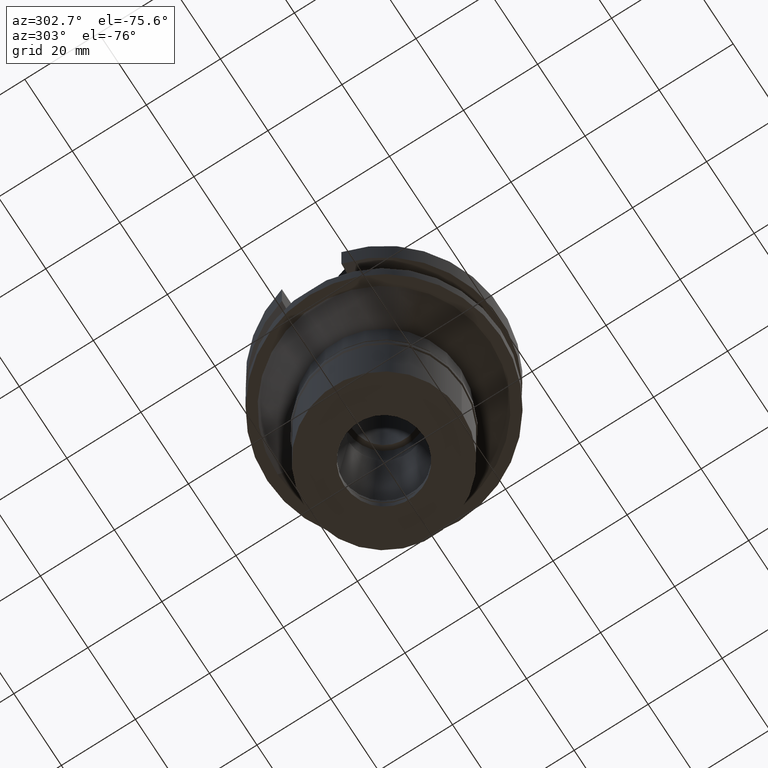
[diagram: clean part render]
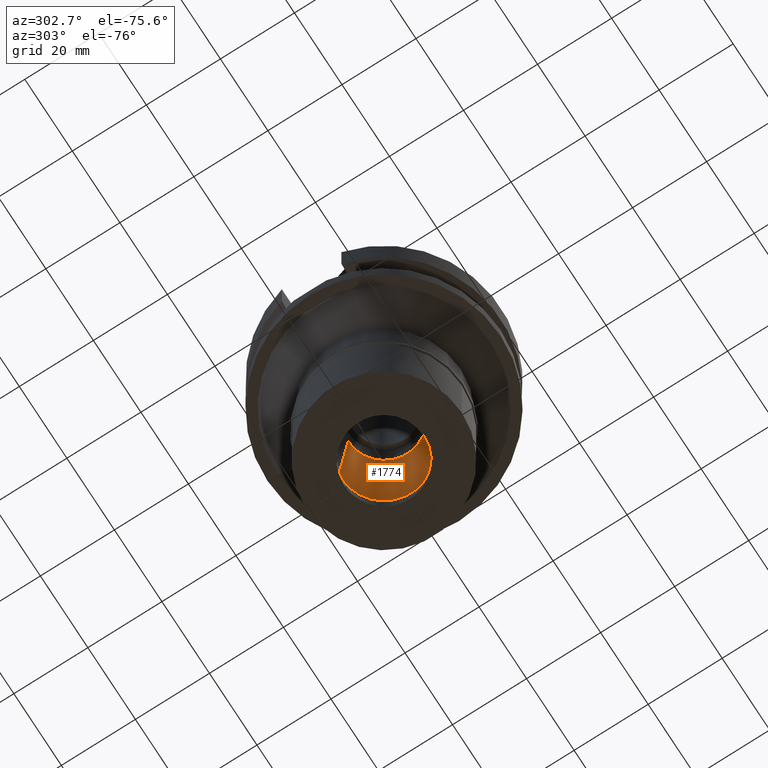
[diagram: same view with one face highlighted and labeled with its STEP entity id]
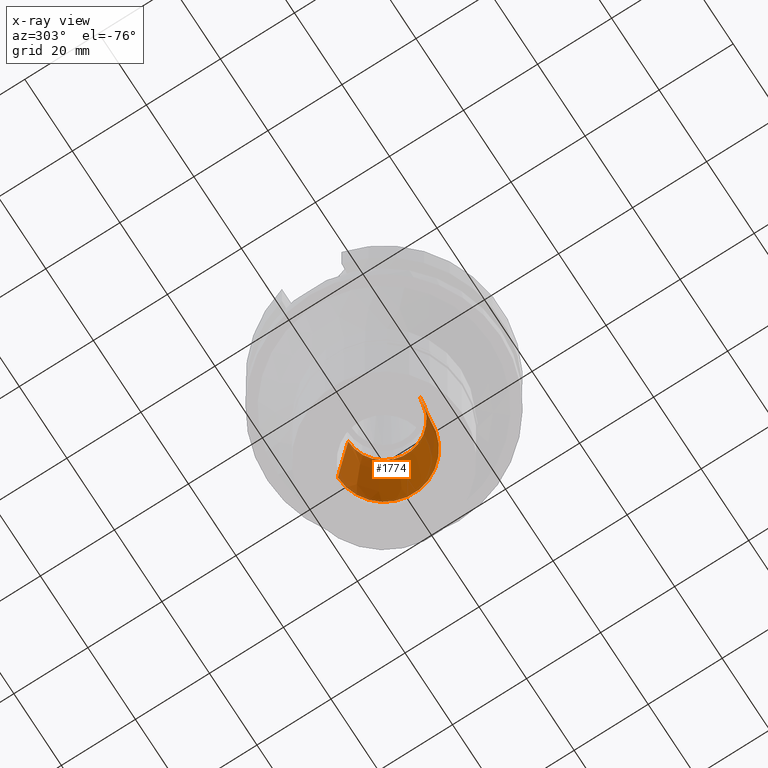
[diagram: x-ray of the same camera — body ghosted, the highlighted face saturated]
A machine part, auxiliary view. The second image highlights one B-rep face of the part: STEP entity #1774.
The next image is the same camera in x-ray: the body ghosted, the highlighted face saturated — about 6% of this face is hidden behind the body in this view.
In plain terms, the highlighted conical surface has half-angle 6 deg.
Its self-contained STEP definition (entity closure, byte-faithful):
#125 = ORIENTED_EDGE ( 'NONE', *, *, #2473, .T. ) ;
#174 = EDGE_LOOP ( 'NONE', ( #1276, #1309, #125, #1488 ) ) ;
#208 = CIRCLE ( 'NONE', #1390, 9.662185647822997936 ) ;
#216 = CARTESIAN_POINT ( 'NONE',  ( 0.0000000000000000000, -9.662185647822997936, -37.00000000000000000 ) ) ;
#258 = CARTESIAN_POINT ( 'NONE',  ( 0.0000000000000000000, 0.0000000000000000000, -37.00000000000000000 ) ) ;
#307 = EDGE_CURVE ( 'NONE', #855, #1479, #830, .T. ) ;
#526 = FACE_OUTER_BOUND ( 'NONE', #174, .T. ) ;
#768 = LINE ( 'NONE', #1690, #1533 ) ;
#830 = CIRCLE ( 'NONE', #2542, 12.50000000000000000 ) ;
#855 = VERTEX_POINT ( 'NONE', #1132 ) ;
#1017 = DIRECTION ( 'NONE',  ( 0.0000000000000000000, -1.000000000000000000, 0.0000000000000000000 ) ) ;
#1132 = CARTESIAN_POINT ( 'NONE',  ( 0.0000000000000000000, 12.50000000000000000, -64.00000000000000000 ) ) ;
#1193 = DIRECTION ( 'NONE',  ( 0.0000000000000000000, 0.0000000000000000000, -1.000000000000000000 ) ) ;
#1276 = ORIENTED_EDGE ( 'NONE', *, *, #307, .T. ) ;
#1309 = ORIENTED_EDGE ( 'NONE', *, *, #2414, .T. ) ;
#1384 = CONICAL_SURFACE ( 'NONE', #2796, 11.08109282390999972, 0.1047197551196402399 ) ;
#1390 = AXIS2_PLACEMENT_3D ( 'NONE', #258, #2135, #1017 ) ;
#1428 = CARTESIAN_POINT ( 'NONE',  ( 0.0000000000000000000, 12.50000000000000000, -64.00000000000000000 ) ) ;
#1468 = CARTESIAN_POINT ( 'NONE',  ( 0.0000000000000000000, 0.0000000000000000000, -50.50000000000000000 ) ) ;
#1479 = VERTEX_POINT ( 'NONE', #1974 ) ;
#1488 = ORIENTED_EDGE ( 'NONE', *, *, #2341, .F. ) ;
#1510 = CARTESIAN_POINT ( 'NONE',  ( 0.0000000000000000000, 9.662185647822997936, -37.00000000000000000 ) ) ;
#1533 = VECTOR ( 'NONE', #2810, 1000.000000000000227 ) ;
#1534 = DIRECTION ( 'NONE',  ( 0.0000000000000000000, 0.0000000000000000000, -1.000000000000000000 ) ) ;
#1690 = CARTESIAN_POINT ( 'NONE',  ( 0.0000000000000000000, -12.50000000000000000, -64.00000000000000000 ) ) ;
#1774 = ADVANCED_FACE ( 'NONE', ( #526 ), #1384, .F. ) ;
#1915 = DIRECTION ( 'NONE',  ( 0.0000000000000000000, -0.1045284632676965891, 0.9945218953682687379 ) ) ;
#1957 = CARTESIAN_POINT ( 'NONE',  ( 0.0000000000000000000, 0.0000000000000000000, -64.00000000000000000 ) ) ;
#1974 = CARTESIAN_POINT ( 'NONE',  ( 0.0000000000000000000, -12.50000000000000000, -64.00000000000000000 ) ) ;
#2054 = VERTEX_POINT ( 'NONE', #1510 ) ;
#2135 = DIRECTION ( 'NONE',  ( 0.0000000000000000000, 0.0000000000000000000, 1.000000000000000000 ) ) ;
#2153 = VERTEX_POINT ( 'NONE', #216 ) ;
#2341 = EDGE_CURVE ( 'NONE', #855, #2054, #2354, .T. ) ;
#2354 = LINE ( 'NONE', #1428, #2800 ) ;
#2414 = EDGE_CURVE ( 'NONE', #1479, #2153, #768, .T. ) ;
#2473 = EDGE_CURVE ( 'NONE', #2153, #2054, #208, .T. ) ;
#2474 = DIRECTION ( 'NONE',  ( 0.0000000000000000000, 1.000000000000000000, 0.0000000000000000000 ) ) ;
#2542 = AXIS2_PLACEMENT_3D ( 'NONE', #1957, #1534, #2474 ) ;
#2796 = AXIS2_PLACEMENT_3D ( 'NONE', #1468, #1193, #2878 ) ;
#2800 = VECTOR ( 'NONE', #1915, 1000.000000000000227 ) ;
#2810 = DIRECTION ( 'NONE',  ( 0.0000000000000000000, 0.1045284632676965891, 0.9945218953682687379 ) ) ;
#2878 = DIRECTION ( 'NONE',  ( 0.0000000000000000000, -1.000000000000000000, 0.0000000000000000000 ) ) ;